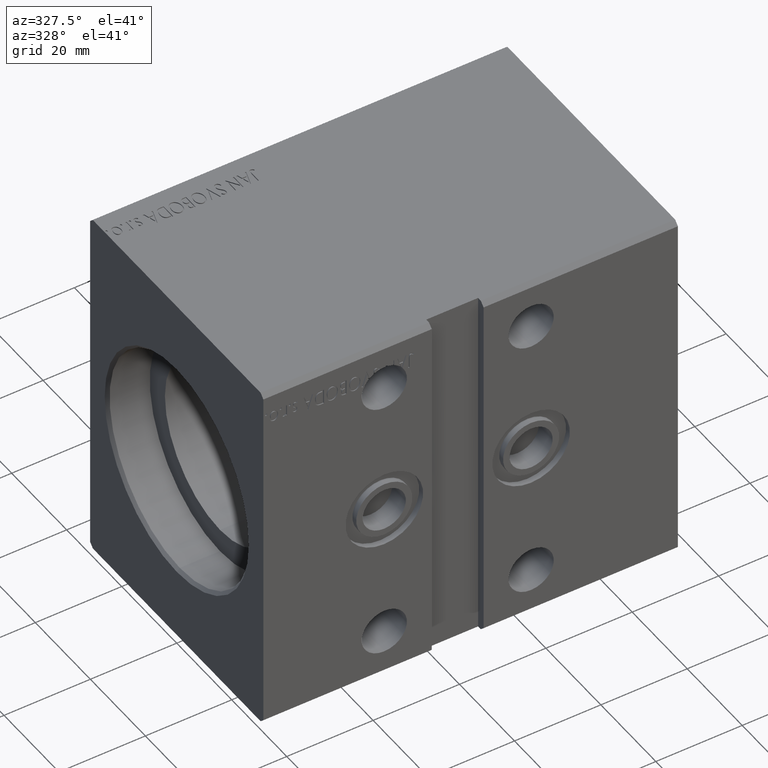
[diagram: clean part render]
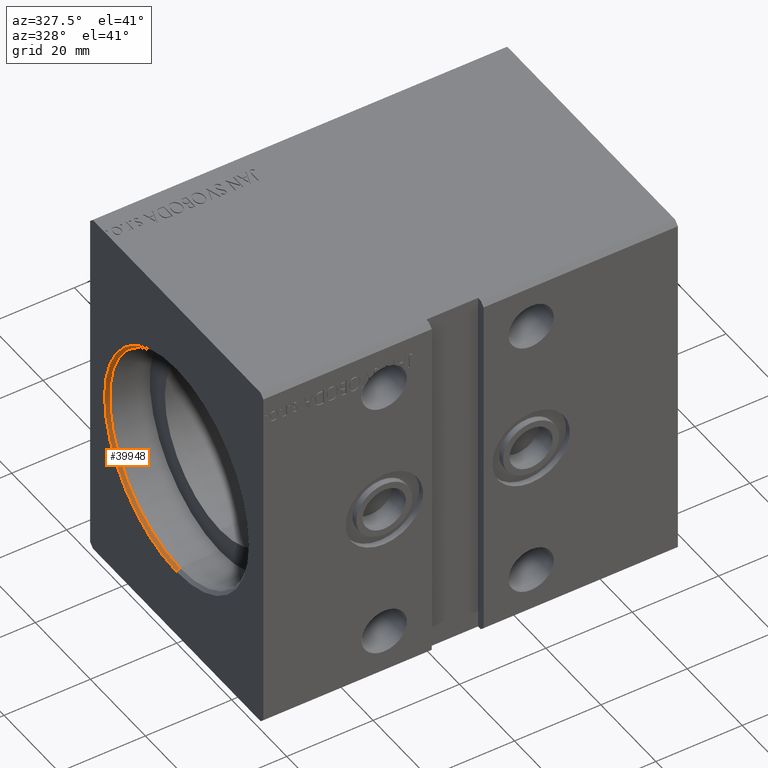
[diagram: same view with one face highlighted and labeled with its STEP entity id]
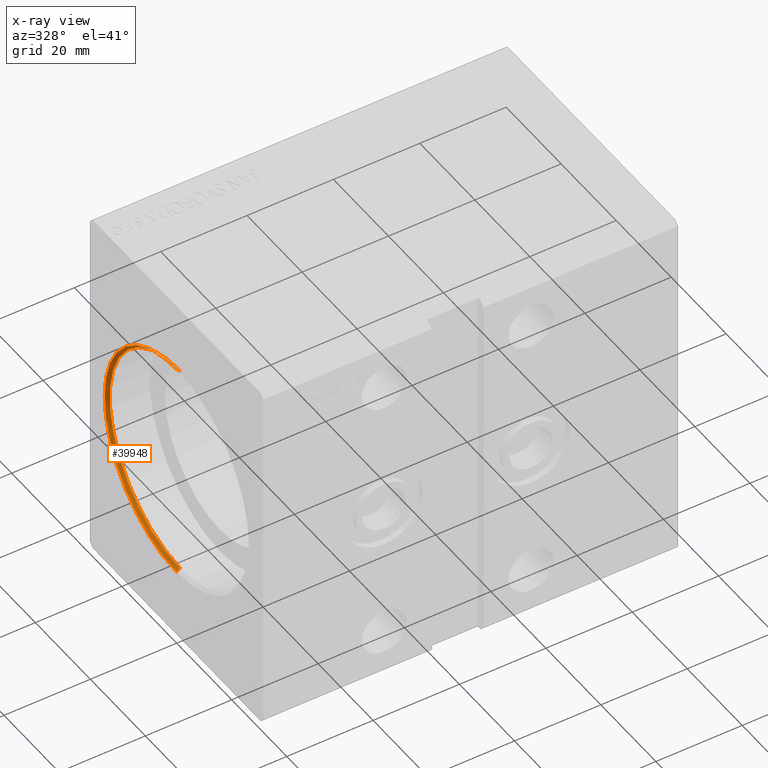
[diagram: x-ray of the same camera — body ghosted, the highlighted face saturated]
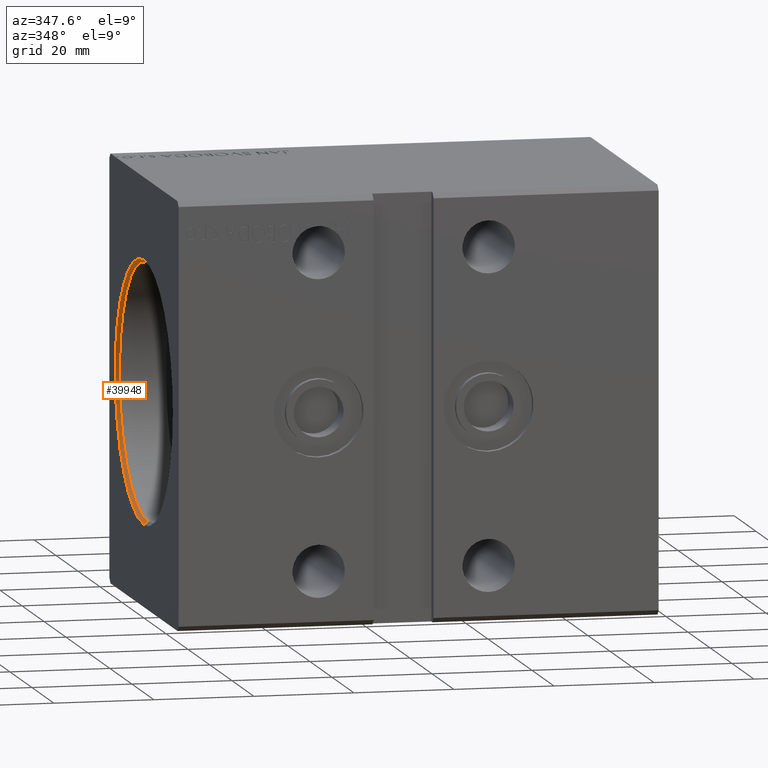
[diagram: same view with one face highlighted and labeled with its STEP entity id]
A machine part, auxiliary view. The second image highlights one B-rep face of the part: STEP entity #39948.
The next image is the same camera in x-ray: the body ghosted, the highlighted face saturated — about 0% of this face is hidden behind the body in this view.
A second angle (auxiliary view) of the same face is appended — the face is thin or edge-on in the first view.
In plain terms, the highlighted conical surface has half-angle 45 deg.
Its self-contained STEP definition (entity closure, byte-faithful):
#2489 = VERTEX_POINT ( 'NONE', #32550 ) ;
#3250 = ORIENTED_EDGE ( 'NONE', *, *, #14933, .T. ) ;
#4974 = CARTESIAN_POINT ( 'NONE',  ( 0.000000000000000000, 3.208574613766063722E-15, -26.19999999999998863 ) ) ;
#5567 = EDGE_CURVE ( 'NONE', #12912, #34201, #7394, .T. ) ;
#5919 = DIRECTION ( 'NONE',  ( 0.000000000000000000, 0.000000000000000000, 1.000000000000000000 ) ) ;
#6119 = DIRECTION ( 'NONE',  ( -1.000000000000000000, 0.000000000000000000, 0.000000000000000000 ) ) ;
#7060 = CONICAL_SURFACE ( 'NONE', #34609, 25.50000000000000000, 0.7853981633974557175 ) ;
#7394 = CIRCLE ( 'NONE', #9989, 26.19999999999998863 ) ;
#7891 = CARTESIAN_POINT ( 'NONE',  ( 0.6999999999999784173, 3.122849337825750222E-15, -25.50000000000000000 ) ) ;
#9989 = AXIS2_PLACEMENT_3D ( 'NONE', #39904, #39700, #37220 ) ;
#10149 = CIRCLE ( 'NONE', #12113, 25.50000000000000000 ) ;
#10677 = LINE ( 'NONE', #32665, #37662 ) ;
#12113 = AXIS2_PLACEMENT_3D ( 'NONE', #24735, #30695, #28032 ) ;
#12912 = VERTEX_POINT ( 'NONE', #4974 ) ;
#14758 = DIRECTION ( 'NONE',  ( -0.7071067811865422437, 8.659560562354996953E-17, -0.7071067811865527908 ) ) ;
#14933 = EDGE_CURVE ( 'NONE', #2489, #34201, #10677, .T. ) ;
#16469 = ORIENTED_EDGE ( 'NONE', *, *, #36816, .F. ) ;
#16872 = ORIENTED_EDGE ( 'NONE', *, *, #5567, .F. ) ;
#24735 = CARTESIAN_POINT ( 'NONE',  ( 0.6999999999999784173, 0.000000000000000000, 0.000000000000000000 ) ) ;
#26478 = EDGE_LOOP ( 'NONE', ( #16469, #40388, #3250, #16872 ) ) ;
#26618 = EDGE_CURVE ( 'NONE', #2489, #39404, #10149, .T. ) ;
#28032 = DIRECTION ( 'NONE',  ( 0.000000000000000000, 0.000000000000000000, -1.000000000000000000 ) ) ;
#29965 = CARTESIAN_POINT ( 'NONE',  ( 0.6999999999999784173, 3.122849337825750222E-15, -25.50000000000000000 ) ) ;
#30057 = CARTESIAN_POINT ( 'NONE',  ( 0.000000000000000000, 0.000000000000000000, 26.19999999999998863 ) ) ;
#30695 = DIRECTION ( 'NONE',  ( -1.000000000000000000, 0.000000000000000000, 0.000000000000000000 ) ) ;
#30793 = CARTESIAN_POINT ( 'NONE',  ( 0.6999999999999784173, 0.000000000000000000, 0.000000000000000000 ) ) ;
#31263 = VECTOR ( 'NONE', #14758, 1000.000000000000000 ) ;
#32550 = CARTESIAN_POINT ( 'NONE',  ( 0.6999999999999784173, 0.000000000000000000, 25.50000000000000000 ) ) ;
#32665 = CARTESIAN_POINT ( 'NONE',  ( 0.6999999999999784173, 0.000000000000000000, 25.50000000000000000 ) ) ;
#34201 = VERTEX_POINT ( 'NONE', #30057 ) ;
#34274 = FACE_OUTER_BOUND ( 'NONE', #26478, .T. ) ;
#34609 = AXIS2_PLACEMENT_3D ( 'NONE', #30793, #6119, #5919 ) ;
#36816 = EDGE_CURVE ( 'NONE', #39404, #12912, #40034, .T. ) ;
#37220 = DIRECTION ( 'NONE',  ( 0.000000000000000000, 0.000000000000000000, -1.000000000000000000 ) ) ;
#37662 = VECTOR ( 'NONE', #38837, 1000.000000000000000 ) ;
#38837 = DIRECTION ( 'NONE',  ( -0.7071067811865422437, 0.000000000000000000, 0.7071067811865527908 ) ) ;
#39404 = VERTEX_POINT ( 'NONE', #7891 ) ;
#39700 = DIRECTION ( 'NONE',  ( 1.000000000000000000, 0.000000000000000000, 0.000000000000000000 ) ) ;
#39904 = CARTESIAN_POINT ( 'NONE',  ( 0.000000000000000000, 0.000000000000000000, 0.000000000000000000 ) ) ;
#39948 = ADVANCED_FACE ( 'NONE', ( #34274 ), #7060, .F. ) ;
#40034 = LINE ( 'NONE', #29965, #31263 ) ;
#40388 = ORIENTED_EDGE ( 'NONE', *, *, #26618, .F. ) ;